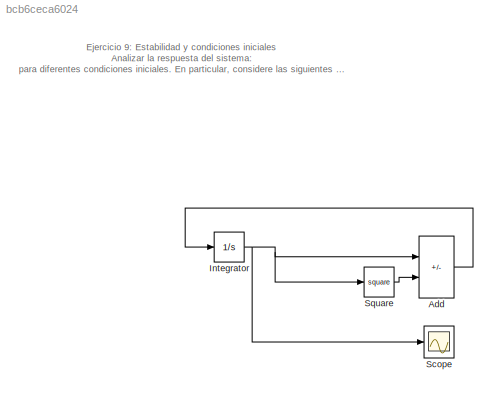
MODEL slx_bcb6ceca6024
KIND model
CONFIG AbsTol = auto
CONFIG EnableMultiTasking = off
CONFIG FixedStep = auto
CONFIG MaxStep = auto
CONFIG MinStep = auto
CONFIG RelTol = 1e-3
CONFIG SampleTimeConstraint = Unconstrained
CONFIG SolverName = VariableStepAuto
CONFIG StartTime = 0.0
CONFIG StopTime = 10.0
BLOCK [Sum] Add
  IconShape = rectangular
  Inputs = -+
BLOCK [Integrator] Integrator
  InitialCondition = [0.5, 1, 1.5]
BLOCK [Scope] Scope
  Floating = off
  NumInputPorts = 1
  ScopeSpecificationString = Simulink.scopes.TimeScopeBlockCfg('CurrentConfiguration', extmgr.ConfigurationSet(extmgr.Configuration('Core','General UI',true),extmgr.Configuration('Core','Source UI',true),extmgr.Configuration('Sources','WiredSimulink',true),extmgr.Configuration('Visuals','Time Domain',true,'SerializedDisplays',{struct('MinYLimReal','-16.06044','MaxYLimReal','147.05842','YLabelReal','','MinYLimMag','0.00000','M...<+1372ch>
BLOCK [Math] Square
  Operator = square
ANNOTATION (root): E jercicio 9: Estabilidad y condiciones iniciales Analizar la respuesta del sistema: para diferentes condiciones iniciales. En particular, considere las siguientes condiciones iniciales:
LINE Add:1 -> Integrator:1
NET Integrator:1 -> Add:1, Scope:1, Square:1
LINE Square:1 -> Add:2
note: NET lines group one-source signal fan-out (src -> all destinations, sorted); 1:1 wires keep LINE
